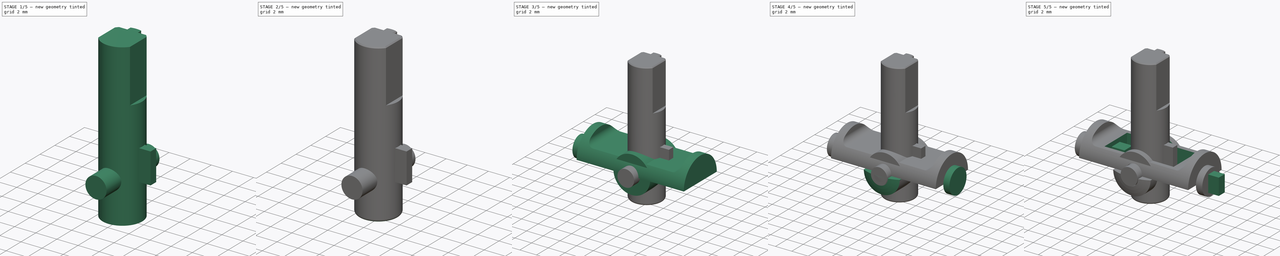
[diagram: build sequence overview — one tinted view per stage of 5, left to right]
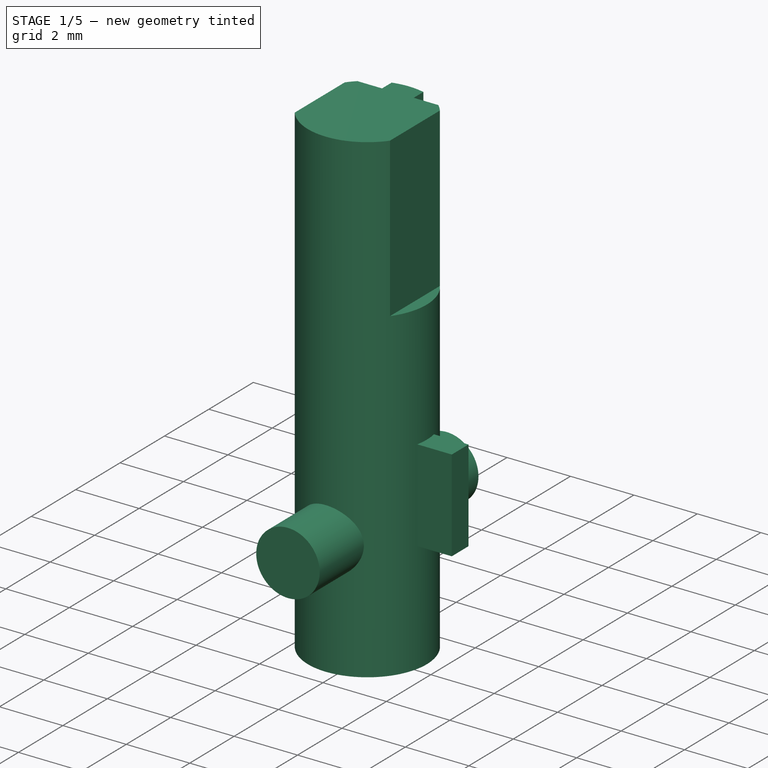
[diagram: stage 1 of 5 — iso view after this stage's code; geometry added in this stage tinted green]
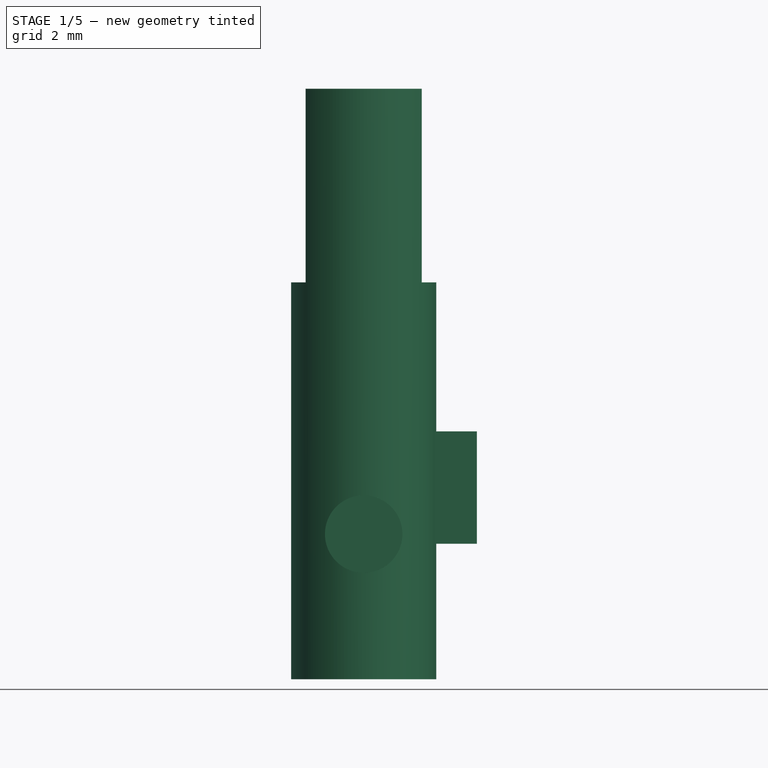
[diagram: stage 1 of 5 — front view after this stage's code; geometry added in this stage tinted green]
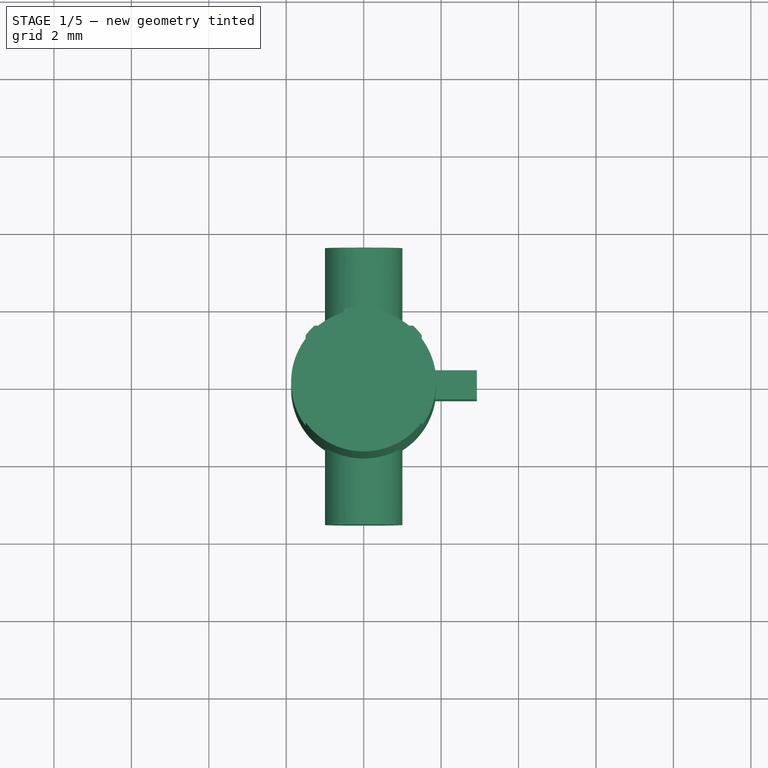
[diagram: stage 1 of 5 — top view after this stage's code; geometry added in this stage tinted green]
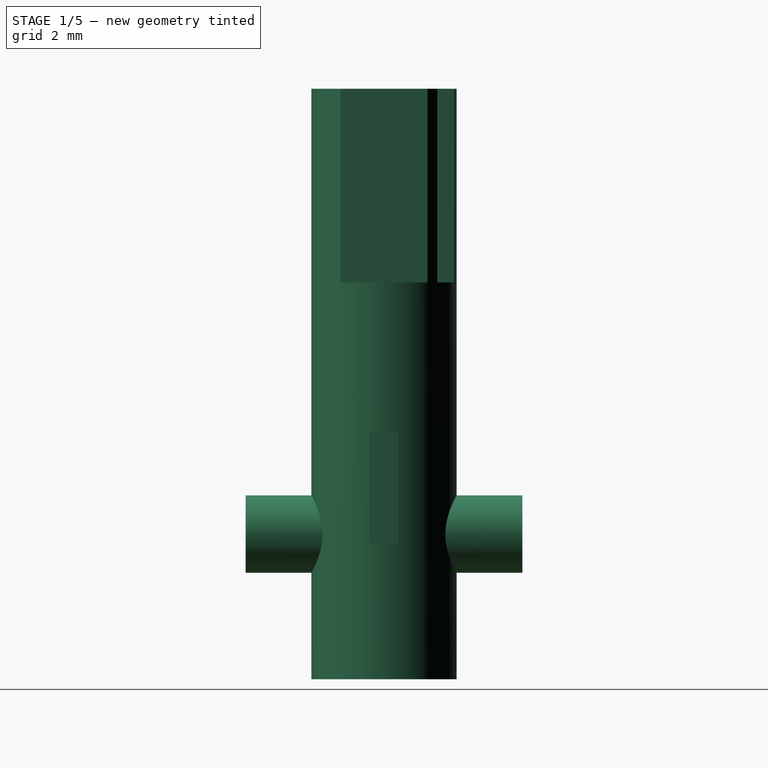
[diagram: stage 1 of 5 — right view after this stage's code; geometry added in this stage tinted green]
FCSTD DOCUMENT  (FreeCAD 1.0R39109 (Git))
Label: NGCC_PARTS_T2
License: All rights reserved
LicenseURL: https://en.wikipedia.org/wiki/All_rights_reserved
objects: Sketcher::SketchObject×16, PartDesign::Pad×9, PartDesign::Pocket×4, PartDesign::Body×2, PartDesign::Revolution×1, PartDesign::Mirrored×1, PartDesign::Groove×1, PartDesign::Fillet×1, PartDesign::Chamfer×1
note: 87 computed .brp shape members not serialized (recipe doc carries the construction recipe); baked Part::Feature solids carry a one-line shape summary decoded from their .brp

FEATURE [Sketcher::SketchObject] Sketch002
  ArcFitTolerance = 1e-06
  AttachmentOffset = pos=(0,0,-6.425) rot=(0,0,1;0rad)
  AttachmentSupport = -> [YZ_Plane]
  FullyConstrained = true
  MakeInternals = false
  MapMode = 5
  Placement = pos=(-6.425,0,0) rot=(0.57735,0.57735,0.57735;2.0944rad)
  expr: .AttachmentOffset.Base.z = -<<Pad>>.Length / 2
  sketch-geometry (1):
    g0: Circle CenterX=0 CenterY=0 CenterZ=0 NormalX=0 NormalY=0 NormalZ=1 AngleXU=0 Radius=1.25
  constraints (2):
    c: Coincident(g0,g-1)
    c: Diameter(g0) = 2.5
FEATURE [Sketcher::SketchObject] Sketch003
  ArcFitTolerance = 1e-06
  AttachmentOffset = pos=(0,0,6.425) rot=(0,0,1;0rad)
  AttachmentSupport = -> [YZ_Plane]
  FullyConstrained = true
  MakeInternals = false
  MapMode = 5
  Placement = pos=(6.425,0,0) rot=(0.57735,0.57735,0.57735;2.0944rad)
  expr: .AttachmentOffset.Base.z = <<Pad>>.Length / 2
  sketch-geometry (1):
    g0: Circle CenterX=0 CenterY=0 CenterZ=0 NormalX=0 NormalY=0 NormalZ=1 AngleXU=0 Radius=1.5
  constraints (2):
    c: Coincident(g0,g-1)
    c: Diameter(g0) = 3
FEATURE [Sketcher::SketchObject] Sketch004
  ArcFitTolerance = 1e-06
  AttachmentOffset = pos=(0,0,7.175) rot=(0,0,1;0rad)
  AttachmentSupport = -> [YZ_Plane]
  FullyConstrained = true
  MakeInternals = false
  MapMode = 5
  Placement = pos=(7.175,0,0) rot=(0.57735,0.57735,0.57735;2.0944rad)
  expr: .AttachmentOffset.Base.z = <<Pad>>.Length / 2 + <<Pad002>>.Length
  expr: Constraints[10] = .Constraints.LL / 2
  expr: Constraints[11] = .Constraints.HH / 2
  sketch-geometry (4):
    g0: LineSegment StartX=-0.5 StartY=0.975 StartZ=0 EndX=-0.5 EndY=-0.975 EndZ=0
    g1: LineSegment StartX=-0.5 StartY=-0.975 StartZ=0 EndX=0.5 EndY=-0.975 EndZ=0
    g2: LineSegment StartX=0.5 StartY=-0.975 StartZ=0 EndX=0.5 EndY=0.975 EndZ=0
    g3: LineSegment StartX=0.5 StartY=0.975 StartZ=0 EndX=-0.5 EndY=0.975 EndZ=0
  constraints (12):
    c: Coincident(g0,g1)
    c: Coincident(g1,g2)
    c: Coincident(g2,g3)
    c: Coincident(g3,g0)
    c: Vertical(g0)
    c: Vertical(g2)
    c: Horizontal(g1)
    c: Horizontal(g3)
    c: Distance(g3,g3) = 1  'LL'
    c: DistanceY(g0,g0) = 1.95  'HH'
    c: DistanceX(g0,g-1) = 0.5
    c: DistanceY(g-1,g0) = 0.975
FEATURE [Sketcher::SketchObject] Sketch005
  ArcFitTolerance = 1e-06
  AttachmentSupport = -> [XY_Plane]
  FullyConstrained = true
  MakeInternals = false
  MapMode = 5
  expr: Constraints[10] = .Constraints.LL / 2
  expr: Constraints[11] = .Constraints.HH / 2
  sketch-geometry (8):
    g0: LineSegment StartX=-4.075 StartY=1.9 StartZ=0 EndX=-4.075 EndY=0.675 EndZ=0
    g1: LineSegment StartX=-4.075 StartY=-1.9 StartZ=0 EndX=4.075 EndY=-1.9 EndZ=0
    g2: LineSegment StartX=4.075 StartY=-1.9 StartZ=0 EndX=4.075 EndY=1.9 EndZ=0
    g3: LineSegment StartX=4.075 StartY=1.9 StartZ=0 EndX=-4.075 EndY=1.9 EndZ=0
    g4: LineSegment StartX=-4.075 StartY=0.675 StartZ=0 EndX=-2.575 EndY=0.675 EndZ=0
    g5: LineSegment StartX=-2.575 StartY=0.675 StartZ=0 EndX=-2.575 EndY=-0.675 EndZ=0
    g6: LineSegment StartX=-2.575 StartY=-0.675 StartZ=0 EndX=-4.075 EndY=-0.675 EndZ=0
    g7: LineSegment StartX=-4.075 StartY=-0.675 StartZ=0 EndX=-4.075 EndY=-1.9 EndZ=0
  constraints (25):
    c: Coincident(g7,g1)
    c: Coincident(g1,g2)
    c: Coincident(g2,g3)
    c: Coincident(g3,g0)
    c: Vertical(g0)
    c: Vertical(g2)
    c: Horizontal(g1)
    c: Horizontal(g3)
    c: DistanceX(g3,g3) = 8.15  'LL'
    c: DistanceY(g7,g0) = 3.8  'HH'
    c: DistanceX(g0,g-1) = 4.075
    c: DistanceY(g-1,g0) = 1.9
    c: Horizontal(g4)
    c: Coincident(g5,g4)
    c: Vertical(g5)
    c: Coincident(g6,g5)
    c: PointOnObject(g6,g7)
    c: Horizontal(g6)
    c: Coincident(g0,g4)
    c: PointOnObject(g7,g6)
    c: DistanceX(g4,g4) = 1.5
    c: Vertical(g7)
    c: Vertical(g6,g0)
    c: DistanceY(g5,g5) = 1.35
    c: Equal(g7,g0)
FEATURE [Sketcher::SketchObject] Sketch006
  ArcFitTolerance = 1e-06
  AttachmentSupport = -> [YZ_Plane]
  FullyConstrained = true
  MakeInternals = false
  MapMode = 5
  Placement = pos=(0,0,0) rot=(0.57735,0.57735,0.57735;2.0944rad)
  expr: Constraints[9] = .Constraints.LL / 2
  sketch-geometry (4):
    g0: LineSegment StartX=-1.5 StartY=3 StartZ=0 EndX=-1.5 EndY=1 EndZ=0
    g1: LineSegment StartX=-1.5 StartY=1 StartZ=0 EndX=1.5 EndY=1 EndZ=0
    g2: LineSegment StartX=1.5 StartY=1 StartZ=0 EndX=1.5 EndY=3 EndZ=0
    g3: LineSegment StartX=1.5 StartY=3 StartZ=0 EndX=-1.5 EndY=3 EndZ=0
  constraints (12):
    c: Coincident(g0,g1)
    c: Coincident(g1,g2)
    c: Coincident(g2,g3)
    c: Coincident(g3,g0)
    c: Vertical(g0)
    c: Vertical(g2)
    c: Horizontal(g1)
    c: Horizontal(g3)
    c: DistanceX(g3,g3) = 3  'LL'
    c: DistanceX(g0,g-1) = 1.5
    c: DistanceY(g0,g0) = 2
    c: DistanceY(g-1,g0) = 1
FEATURE [Sketcher::SketchObject] Sketch008
  ArcFitTolerance = 1e-06
  AttachmentOffset = pos=(0,0,6.5) rot=(0,0,1;0rad)
  AttachmentSupport = -> [XY_Plane002]
  FullyConstrained = true
  MakeInternals = false
  MapMode = 5
  Placement = pos=(0,0,6.5) rot=(0,0,1;0rad)
  sketch-geometry (1):
    g0: Circle CenterX=0 CenterY=0 CenterZ=0 NormalX=0 NormalY=0 NormalZ=1 AngleXU=0 Radius=1.875
  constraints (2):
    c: Coincident(g0,g-1)
    c: Diameter(g0) = 3.75
FEATURE [PartDesign::Pad] Pad004  label="Stem1"
  Direction = (0,0,1)
  Length = 10.25
  Length2 = 10
  Profile = -> Sketch008
  ReferenceAxis = -> Sketch008 [N_Axis]
  Refine = true
  Reversed = true
  Suppressed = false
  Type = 0
  expr: Length = 15.25 - 5
FEATURE [Sketcher::SketchObject] Sketch010
  ArcFitTolerance = 1e-06
  AttachmentOffset = pos=(0,0,6.5) rot=(0,0,1;0rad)
  AttachmentSupport = -> [XY_Plane002]
  FullyConstrained = true
  MakeInternals = false
  MapMode = 5
  Placement = pos=(0,0,6.5) rot=(0,0,1;0rad)
  sketch-geometry (10):
    g0: ArcOfCircle CenterX=0 CenterY=0 CenterZ=0 NormalX=0 NormalY=0 NormalZ=1 AngleXU=0 Radius=1.875 StartAngle=0.643501 EndAngle=0.823212
    g1: LineSegment StartX=-1.5 StartY=1.125 StartZ=0 EndX=-1.5 EndY=-1.125 EndZ=0
    g2: LineSegment StartX=1.5 StartY=1.125 StartZ=0 EndX=1.5 EndY=-1.125 EndZ=0
    g3: LineSegment StartX=-1.27475 StartY=1.375 StartZ=0 EndX=-0.5 EndY=1.375 EndZ=0
    g4: LineSegment StartX=-0.5 StartY=1.8071 StartZ=0 EndX=-0.5 EndY=1.375 EndZ=0
    g5: ArcOfCircle CenterX=0 CenterY=0 CenterZ=0 NormalX=0 NormalY=0 NormalZ=1 AngleXU=0 Radius=1.875 StartAngle=3.78509 EndAngle=5.63968
    g6: ArcOfCircle CenterX=0 CenterY=0 CenterZ=0 NormalX=0 NormalY=0 NormalZ=1 AngleXU=0 Radius=1.875 StartAngle=2.31838 EndAngle=2.49809
    g7: LineSegment StartX=0.5 StartY=1.8071 StartZ=0 EndX=0.5 EndY=1.375 EndZ=0
    g8: ArcOfCircle CenterX=0 CenterY=0 CenterZ=0 NormalX=0 NormalY=0 NormalZ=1 AngleXU=0 Radius=1.875 StartAngle=1.30086 EndAngle=1.84073
    g9: LineSegment StartX=0.5 StartY=1.375 StartZ=0 EndX=1.27475 EndY=1.375 EndZ=0
  constraints (30):
    c: Coincident(g0,g-1)
    c: Diameter(g0) = 3.75
    c: Vertical(g1)
    c: Vertical(g2)
    c: DistanceX(g-1,g2) = 1.5
    c: Horizontal(g3)
    c: Vertical(g4)
    c: DistanceX(g4,g-1) = 0.5
    c: Coincident(g5,g2)
    c: Coincident(g0,g2)
    c: Equal(g0,g5)
    c: Coincident(g0,g5)
    c: Coincident(g1,g5)
    c: Coincident(g1,g6)
    c: DistanceX(g6,g-1) = 1.5
    c: Equal(g0,g6)
    c: Coincident(g0,g6)
    c: Vertical(g7)
    c: DistanceX(g-1,g7) = 0.5
    c: Equal(g0,g8)
    c: Coincident(g0,g8)
    c: Coincident(g9,g0)
    c: Coincident(g4,g3)
    c: Coincident(g3,g6)
    c: DistanceY(g-1,g3) = 1.375
    c: Horizontal(g3,g7)
    c: Horizontal(g9)
    c: Coincident(g7,g9)
    c: Coincident(g7,g8)
    c: Coincident(g4,g8)
FEATURE [PartDesign::Pad] Pad006  label="Stem2"
  BaseFeature = -> Pad004
  Direction = (0,0,1)
  Length = 5
  Length2 = 10
  Profile = -> Sketch010
  ReferenceAxis = -> Sketch010 [N_Axis]
  Refine = true
  Suppressed = false
  Type = 0
FEATURE [PartDesign::Body] Body  label="GUIDE_X"
  AllowCompound = false
  Group = -> [Sketch,Pad,Sketch001,Pocket,Pad008,Sketch002,Pad001,Sketch003,Sketch013,Revolution001,Mirrored,Pad002,Sketch004,Pad003,Sketch005,Pocket001,Sketch006,Pocket002,Sketch012,Sketch014,Pocket003]
  Origin = -> Origin
  Tip = -> Pocket003
FEATURE [Sketcher::SketchObject] Sketch015
  ArcFitTolerance = 1e-06
  AttachmentSupport = -> [YZ_Plane002]
  FullyConstrained = true
  MakeInternals = false
  MapMode = 5
  Placement = pos=(0,0,0) rot=(0.57735,0.57735,0.57735;2.0944rad)
  expr: Constraints[10] = .Constraints.LL / 2
  sketch-geometry (5):
    g0: LineSegment StartX=-0.375 StartY=2.65 StartZ=0 EndX=-0.375 EndY=-0.25 EndZ=0
    g1: LineSegment StartX=-0.375 StartY=-0.25 StartZ=0 EndX=0.375 EndY=-0.25 EndZ=0
    g2: LineSegment StartX=0.375 StartY=-0.25 StartZ=0 EndX=0.375 EndY=2.65 EndZ=0
    g3: LineSegment StartX=0.375 StartY=2.65 StartZ=0 EndX=-0.375 EndY=2.65 EndZ=0
    g4: LineSegment [constr] StartX=0 StartY=0 StartZ=0 EndX=0 EndY=11.5 EndZ=0
  constraints (15):
    c: Coincident(g0,g1)
    c: Coincident(g1,g2)
    c: Coincident(g2,g3)
    c: Coincident(g3,g0)
    c: Vertical(g0)
    c: Vertical(g2)
    c: Horizontal(g1)
    c: Horizontal(g3)
    c: DistanceY(g0,g0) = 2.9  'HH'
    c: DistanceX(g3,g3) = 0.75  'LL'
    c: DistanceX(g0,g-1) = 0.375
    c: Vertical(g4)
    c: DistanceY(g4,g4) = 11.5
    c: Coincident(g-1,g4)
    c: DistanceY(g0,g4) = 11.75
FEATURE [Sketcher::SketchObject] Sketch016
  ArcFitTolerance = 1e-06
  AttachmentSupport = -> [XZ_Plane002]
  FullyConstrained = true
  MakeInternals = false
  MapMode = 5
  Placement = pos=(0,0,0) rot=(1,0,0;1.5708rad)
  expr: .Constraints.LL = 3.75 / 2
  sketch-geometry (3):
    g0: LineSegment StartX=-1.875 StartY=-3.4 StartZ=0 EndX=-1.875 EndY=-3.75 EndZ=0
    g1: LineSegment StartX=-1.875 StartY=-3.75 StartZ=0 EndX=-2.2e-15 EndY=-3.75 EndZ=0
    g2: ArcOfCircle CenterX=-0.0368587 CenterY=1.24986 CenterZ=0 NormalX=0 NormalY=0 NormalZ=1 AngleXU=0 Radius=5 StartAngle=4.33593 EndAngle=4.71976
  constraints (10):
    c: Vertical(g0)
    c: Coincident(g1,g0)
    c: Horizontal(g1)
    c: Coincident(g2,g1)
    c: Coincident(g2,g0)
    c: DistanceY(g0,g0) = 0.35
    c: DistanceX(g1,g1) = 1.875  'LL'
    c: Radius(g2) = 5
    c: Vertical(g-1,g1)
    c: DistanceY(g0,g-1) = 3.75
FEATURE [Sketcher::SketchObject] Sketch017  label="Ref"
  ArcFitTolerance = 1e-06
  AttachmentSupport = -> [XZ_Plane002]
  FullyConstrained = false
  MakeInternals = false
  MapMode = 5
  Placement = pos=(0,0,0) rot=(1,0,0;1.5708rad)
  sketch-geometry (6):
    g0: LineSegment StartX=2.75739 StartY=-5.5 StartZ=0 EndX=5.73733 EndY=-5.5 EndZ=0
    g1: LineSegment StartX=13.5006 StartY=1.25 StartZ=0 EndX=-13.9716 EndY=1.25 EndZ=0
    g2: LineSegment StartX=-6.30912 StartY=-6.25 StartZ=0 EndX=6.15947 EndY=-6.25 EndZ=0
    g3: LineSegment StartX=8.4034 StartY=-1.25 StartZ=0 EndX=-9.9256 EndY=-1.25 EndZ=0
    g4: LineSegment StartX=-2.25091 StartY=-5.075 StartZ=0 EndX=-7.99017 EndY=-5.075 EndZ=0
    g5: LineSegment StartX=6.5839 StartY=11.45 StartZ=0 EndX=-7.9181 EndY=11.45 EndZ=0
  constraints (13):
    c: Horizontal(g0)
    c: Horizontal(g1)
    c: DistanceY(g-1,g1) = 1.25
    c: Distance(g1,g0) = 6.75
    c: Horizontal(g2)
    c: Horizontal(g3)
    c: Distance(g2,g0) = 0.75
    c: DistanceY(g3,g-1) = 1.25
    c: Horizontal(g4)
    c: DistanceY(g4,g3) = 3.825
    c: DistanceY(g2,g4) = 1.175
    c: Horizontal(g5)
    c: DistanceY(g2,g5) = 17.7
FEATURE [PartDesign::Pad] Pad007  label="Y_STEM"
  BaseFeature = -> Pad006
  Direction = (0,-1,2e-16)
  Length = 7.15
  Length2 = 10
  Midplane = true
  Profile = -> Sketch011
  ReferenceAxis = -> Sketch011 [N_Axis]
  Refine = true
  Suppressed = false
  Type = 0
FEATURE [PartDesign::Pad] Pad009
  BaseFeature = -> Pad007
  Direction = (1,0,0)
  Length = 2.925
  Length2 = 10
  Profile = -> Sketch015
  ReferenceAxis = -> Sketch015 [N_Axis]
  Refine = true
  Suppressed = false
  Type = 0
  expr: Length = 4.6 - 3.35 / 2
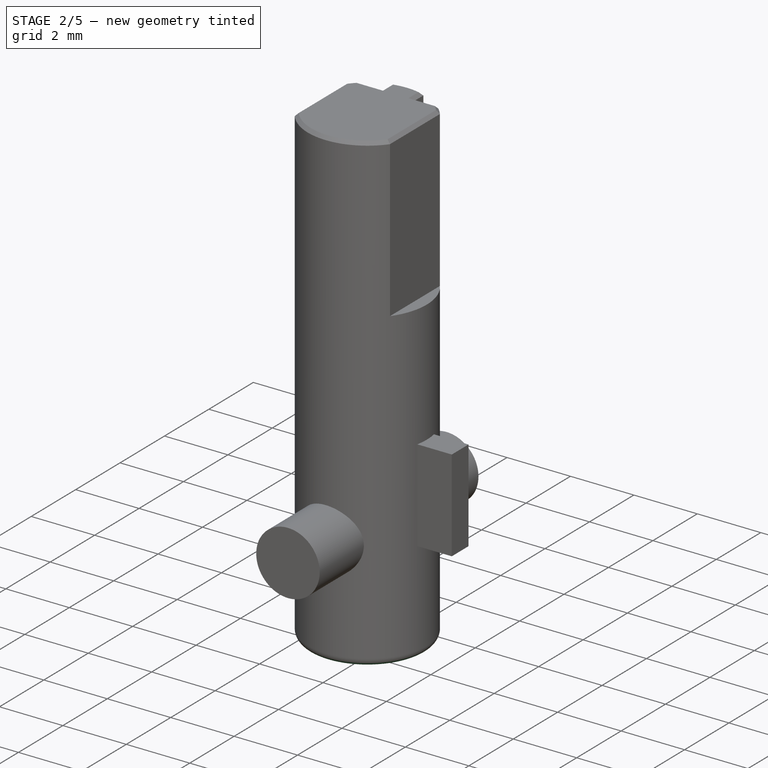
[diagram: stage 2 of 5 — iso view after this stage's code; geometry added in this stage tinted green]
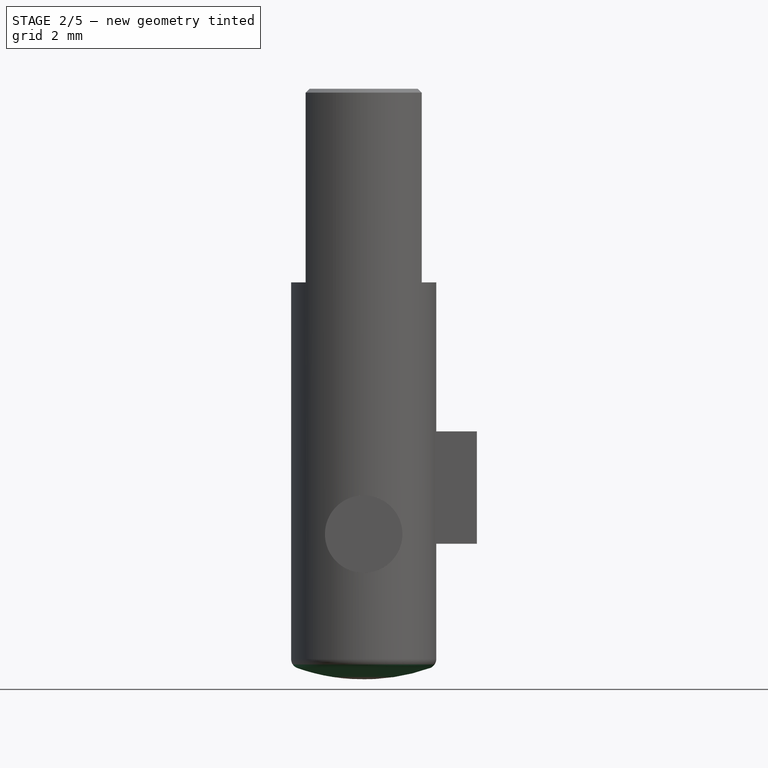
[diagram: stage 2 of 5 — front view after this stage's code; geometry added in this stage tinted green]
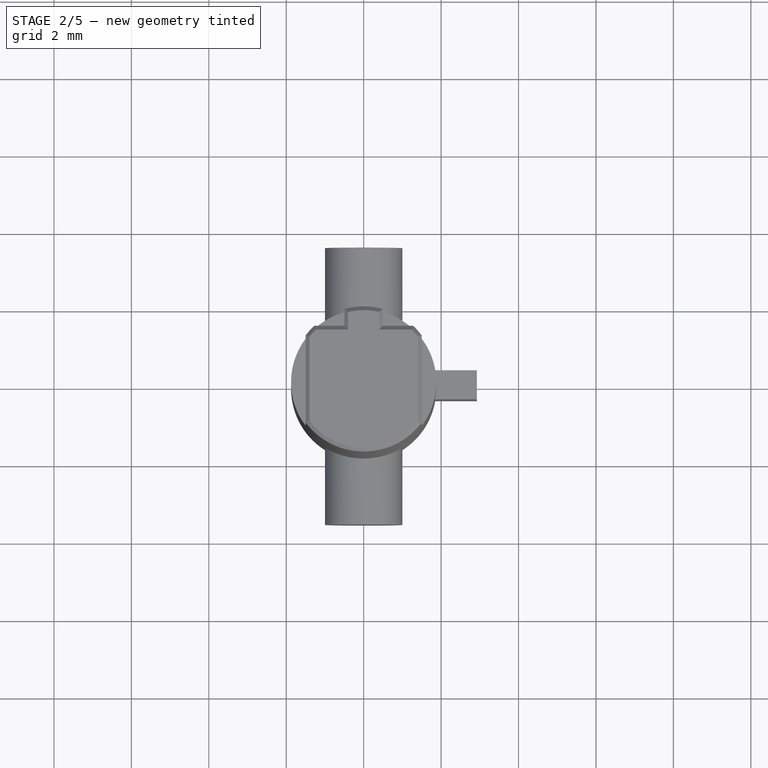
[diagram: stage 2 of 5 — top view after this stage's code; geometry added in this stage tinted green]
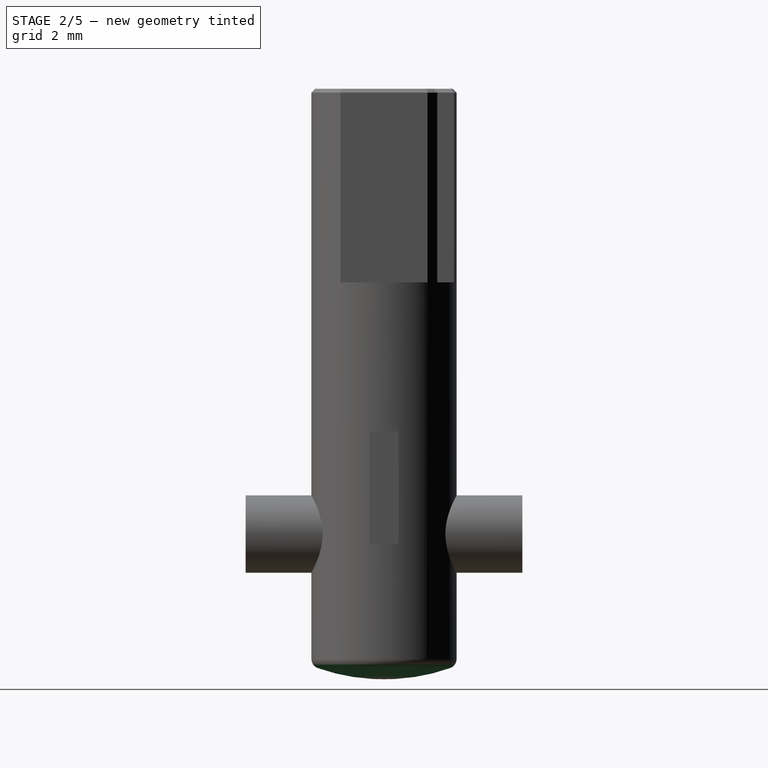
[diagram: stage 2 of 5 — right view after this stage's code; geometry added in this stage tinted green]
FEATURE [PartDesign::Groove] Groove
  Angle = 360
  Angle2 = 60
  Axis = (0,2e-16,1)
  Base = (0,0,0)
  BaseFeature = -> Pad009
  Profile = -> Sketch016
  ReferenceAxis = -> Sketch016 [V_Axis]
  Refine = true
  Reversed = true
  Suppressed = false
  Type = 0
FEATURE [PartDesign::Fillet] Fillet
  Base = -> Groove [Edge11]
  BaseFeature = -> Groove
  Radius = 0.25
  Refine = true
  SupportTransform = false
  Suppressed = false
  UseAllEdges = false
FEATURE [PartDesign::Chamfer] Chamfer
  Angle = 45
  Base = -> Fillet [Face10]
  BaseFeature = -> Fillet
  ChamferType = 0
  FlipDirection = false
  Refine = true
  Size = 0.1
  Size2 = 1
  SupportTransform = false
  Suppressed = false
  UseAllEdges = false
FEATURE [PartDesign::Body] Body002  label="STEM"
  AllowCompound = false
  Group = -> [Sketch008,Pad004,Sketch010,Pad006,Sketch011,Pad007,Sketch015,Pad009,Sketch016,Groove,Fillet,Chamfer]
  Origin = -> Origin002
  Tip = -> Chamfer
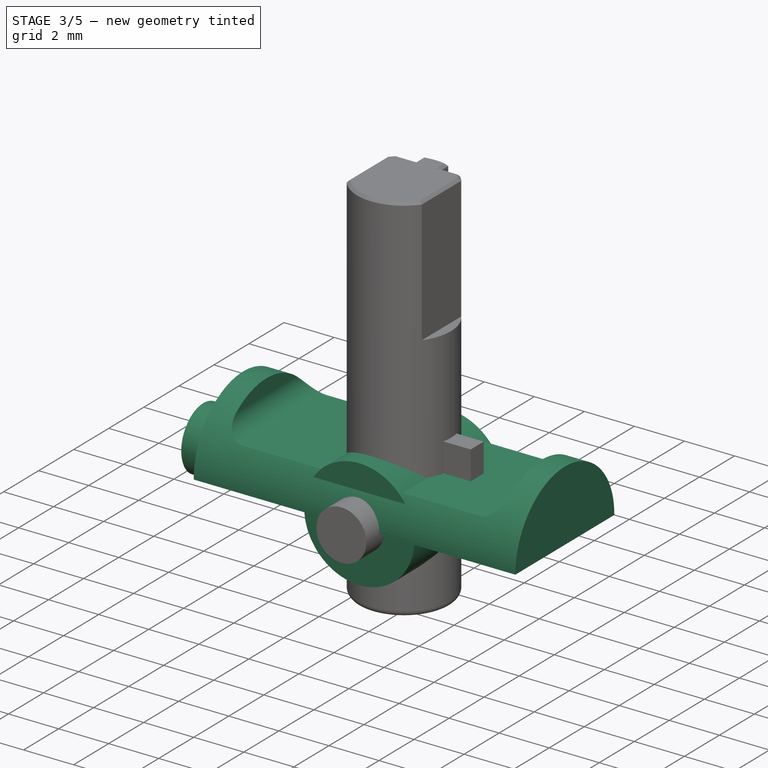
[diagram: stage 3 of 5 — iso view after this stage's code; geometry added in this stage tinted green]
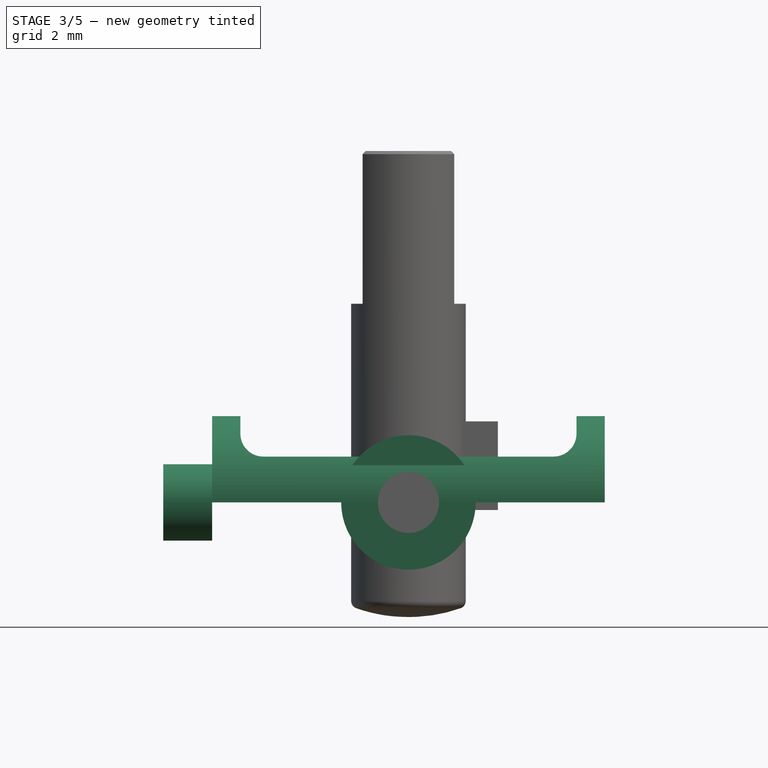
[diagram: stage 3 of 5 — front view after this stage's code; geometry added in this stage tinted green]
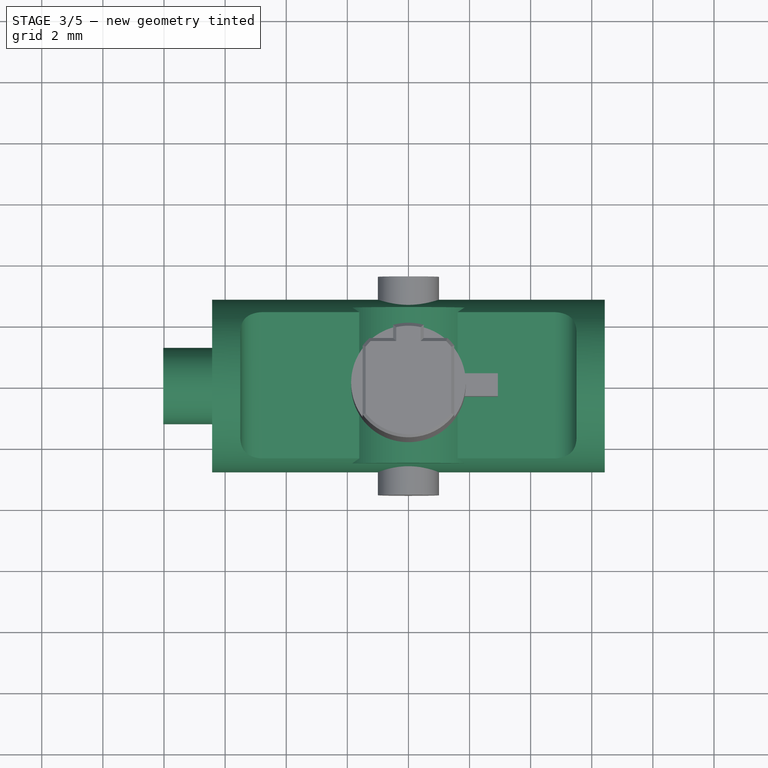
[diagram: stage 3 of 5 — top view after this stage's code; geometry added in this stage tinted green]
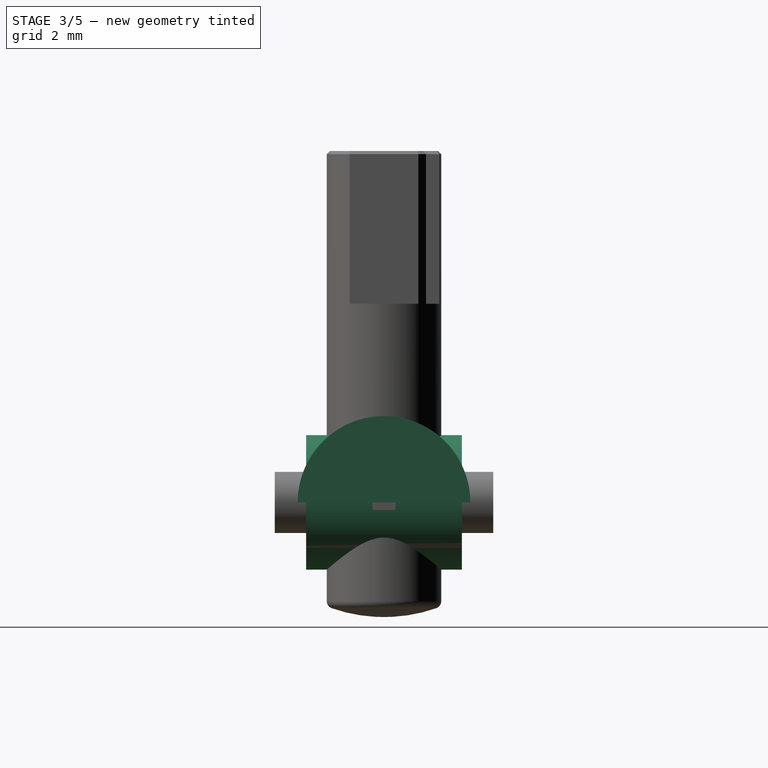
[diagram: stage 3 of 5 — right view after this stage's code; geometry added in this stage tinted green]
FEATURE [Sketcher::SketchObject] Sketch
  ArcFitTolerance = 1e-06
  AttachmentSupport = -> [YZ_Plane]
  FullyConstrained = true
  MakeInternals = false
  MapMode = 5
  Placement = pos=(0,0,0) rot=(0.57735,0.57735,0.57735;2.0944rad)
  sketch-geometry (2):
    g0: ArcOfCircle CenterX=0 CenterY=0 CenterZ=0 NormalX=0 NormalY=0 NormalZ=1 AngleXU=0 Radius=2.825 StartAngle=0 EndAngle=3.14159
    g1: LineSegment StartX=-2.825 StartY=0 StartZ=0 EndX=2.825 EndY=0 EndZ=0
  constraints (6):
    c: Coincident(g0,g-1)
    c: Diameter(g0) = 5.65
    c: Horizontal(g1)
    c: Coincident(g0,g1)
    c: Coincident(g0,g1)
    c: Horizontal(g0,g0)
FEATURE [PartDesign::Pad] Pad
  Direction = (1,0,0)
  Length = 12.85
  Length2 = 10
  Midplane = true
  Placement = pos=(0,0,0) rot=(1,1,1;2.0944rad)
  Profile = -> Sketch
  ReferenceAxis = -> Sketch [N_Axis]
  Refine = true
  Suppressed = false
  Type = 0
FEATURE [Sketcher::SketchObject] Sketch001
  ArcFitTolerance = 1e-06
  AttachmentSupport = -> [XZ_Plane]
  FullyConstrained = true
  MakeInternals = false
  MapMode = 5
  Placement = pos=(0,0,0) rot=(1,0,0;1.5708rad)
  expr: Constraints[16] = .Constraints.LL / 2
  sketch-geometry (8):
    g0: LineSegment StartX=-5.5 StartY=4.25 StartZ=0 EndX=-5.5 EndY=2.25 EndZ=0
    g1: LineSegment StartX=-4.75 StartY=1.5 StartZ=0 EndX=4.75 EndY=1.5 EndZ=0
    g2: LineSegment StartX=5.5 StartY=2.25 StartZ=0 EndX=5.5 EndY=4.25 EndZ=0
    g3: LineSegment StartX=5.5 StartY=4.25 StartZ=0 EndX=-5.5 EndY=4.25 EndZ=0
    g4: ArcOfCircle CenterX=-4.75 CenterY=2.25 CenterZ=0 NormalX=0 NormalY=0 NormalZ=1 AngleXU=0 Radius=0.75 StartAngle=3.14159 EndAngle=4.71239
    g5: GeomPoint [constr] X=-5.5 Y=1.5 Z=0
    g6: ArcOfCircle CenterX=4.75 CenterY=2.25 CenterZ=0 NormalX=0 NormalY=0 NormalZ=1 AngleXU=0 Radius=0.75 StartAngle=4.71239 EndAngle=6.28319
    g7: GeomPoint [constr] X=5.5 Y=1.5 Z=0
  constraints (20):
    c: Coincident(g2,g3)
    c: Coincident(g3,g0)
    c: Vertical(g0)
    c: Vertical(g2)
    c: Horizontal(g1)
    c: Horizontal(g3)
    c: PointOnObject(g5,g0)
    c: PointOnObject(g5,g1)
    c: Tangent(g0,g4) = -1.5708
    c: Tangent(g1,g4) = -1.5708
    c: PointOnObject(g7,g1)
    c: PointOnObject(g7,g2)
    c: Tangent(g1,g6) = -1.5708
    c: Tangent(g2,g6) = -1.5708
    c: DistanceY(g-1,g5) = 1.5
    c: DistanceX(g3,g3) = 11  'LL'
    c: DistanceX(g0,g-1) = 5.5
    c: Equal(g4,g6)
    c: Radius(g4) = 0.75
    c: DistanceY(g0,g0) = 2
FEATURE [PartDesign::Pocket] Pocket
  BaseFeature = -> Pad
  Direction = (0,1,-2e-16)
  Length = 5
  Length2 = 5
  Midplane = true
  Placement = pos=(0,0,0) rot=(1,1,1;2.0944rad)
  Profile = -> Sketch001
  ReferenceAxis = -> Sketch001 [N_Axis]
  Refine = true
  Suppressed = false
  Type = 1
FEATURE [Sketcher::SketchObject] Sketch011
  ArcFitTolerance = 1e-06
  AttachmentSupport = -> [XZ_Plane002]
  FullyConstrained = true
  MakeInternals = false
  MapMode = 5
  Placement = pos=(0,0,0) rot=(1,0,0;1.5708rad)
  sketch-geometry (1):
    g0: Circle CenterX=0 CenterY=0 CenterZ=0 NormalX=0 NormalY=0 NormalZ=1 AngleXU=0 Radius=1
  constraints (2):
    c: Coincident(g0,g-1)
    c: Diameter(g0) = 2
FEATURE [Sketcher::SketchObject] Sketch012
  ArcFitTolerance = 1e-06
  AttachmentSupport = -> [XZ_Plane]
  FullyConstrained = true
  MakeInternals = false
  MapMode = 5
  Placement = pos=(0,0,0) rot=(1,0,0;1.5708rad)
  sketch-geometry (1):
    g0: Circle CenterX=0 CenterY=0 CenterZ=0 NormalX=0 NormalY=0 NormalZ=1 AngleXU=0 Radius=2.2
  constraints (2):
    c: Diameter(g0) = 4.4
    c: Coincident(g0,g-1)
FEATURE [PartDesign::Pad] Pad008
  BaseFeature = -> Pocket
  Direction = (0,-1,2e-16)
  Length = 5.1
  Length2 = 10
  Midplane = true
  Placement = pos=(0,0,0) rot=(1,1,1;2.0944rad)
  Profile = -> Sketch012
  ReferenceAxis = -> Sketch012 [N_Axis]
  Refine = true
  Suppressed = false
  Type = 0
FEATURE [PartDesign::Pad] Pad001
  BaseFeature = -> Pad008
  Direction = (1,0,0)
  Length = 1.6
  Length2 = 10
  Placement = pos=(0,0,0) rot=(1,1,1;2.0944rad)
  Profile = -> Sketch002
  ReferenceAxis = -> Sketch002 [N_Axis]
  Refine = true
  Reversed = true
  Suppressed = false
  Type = 0
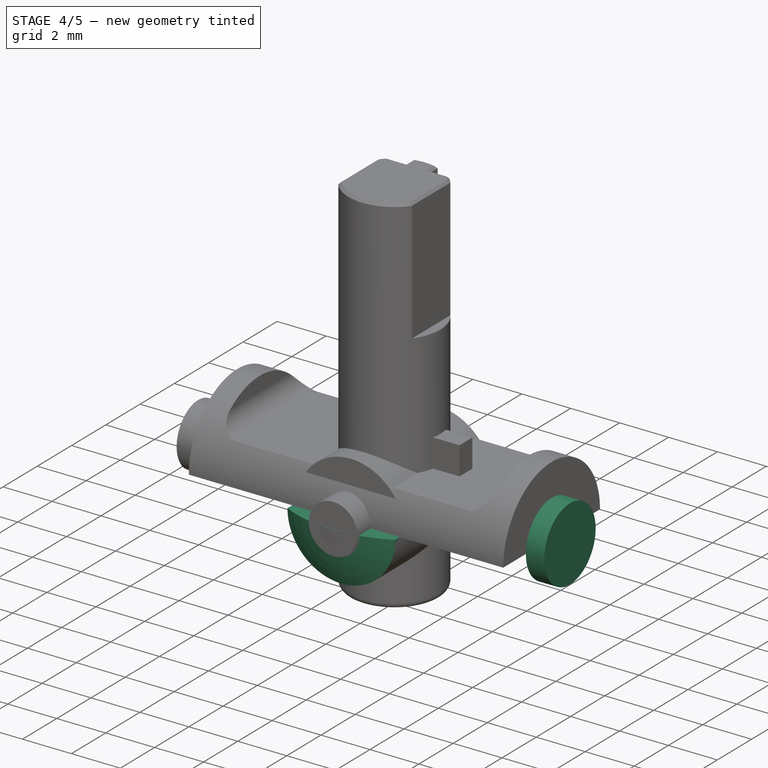
[diagram: stage 4 of 5 — iso view after this stage's code; geometry added in this stage tinted green]
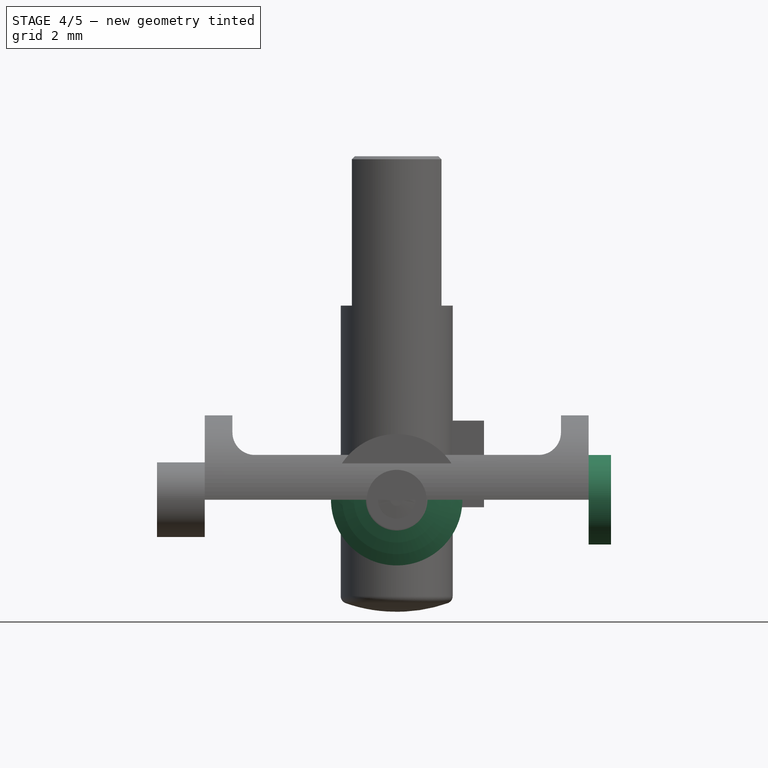
[diagram: stage 4 of 5 — front view after this stage's code; geometry added in this stage tinted green]
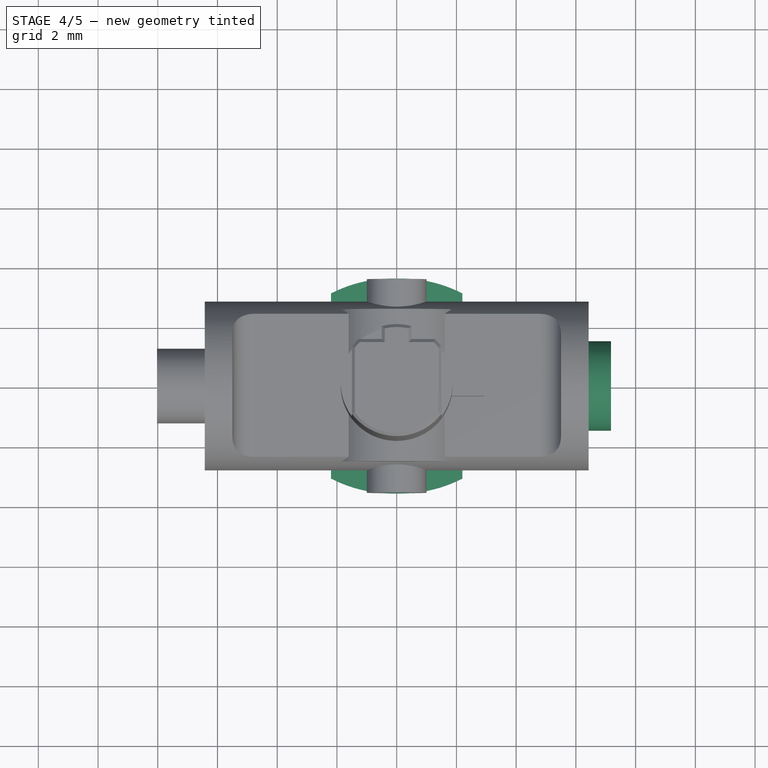
[diagram: stage 4 of 5 — top view after this stage's code; geometry added in this stage tinted green]
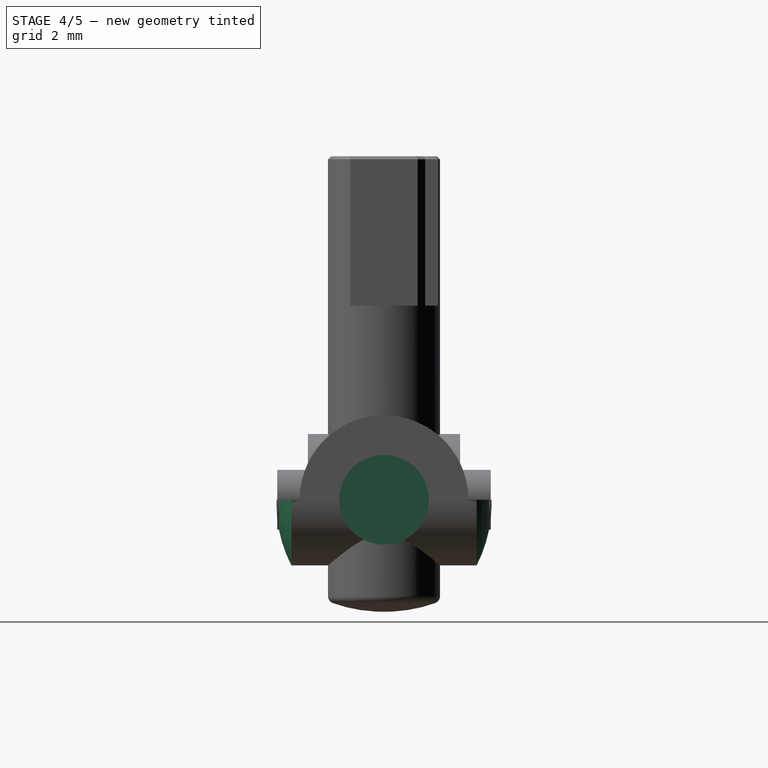
[diagram: stage 4 of 5 — right view after this stage's code; geometry added in this stage tinted green]
FEATURE [Sketcher::SketchObject] Sketch013
  ArcFitTolerance = 1e-06
  AttachmentSupport = -> [XY_Plane]
  FullyConstrained = true
  MakeInternals = false
  MapMode = 5
  sketch-geometry (4):
    g0: LineSegment StartX=-2.2 StartY=-2.5 StartZ=0 EndX=-2.2 EndY=-3.1 EndZ=0
    g1: LineSegment StartX=-2.2 StartY=-2.5 StartZ=0 EndX=-2.35e-14 EndY=-2.5 EndZ=0
    g2: LineSegment StartX=-2.35e-14 StartY=-2.5 StartZ=0 EndX=-2.35e-14 EndY=-3.6 EndZ=0
    g3: ArcOfCircle CenterX=-0.134548 CenterY=0.897988 CenterZ=0 NormalX=0 NormalY=0 NormalZ=1 AngleXU=0 Radius=4.5 StartAngle=4.23553 EndAngle=4.74229
  constraints (13):
    c: Coincident(g1,g0)
    c: Horizontal(g1)
    c: Coincident(g2,g1)
    c: Vertical(g2)
    c: Vertical(g0)
    c: Coincident(g3,g0)
    c: Coincident(g3,g2)
    c: DistanceY(g0,g-1) = 2.5
    c: Vertical(g1,g-1)
    c: DistanceX(g1,g1) = 2.2
    c: DistanceY(g0,g0) = 0.6
    c: DistanceY(g2,g2) = 1.1
    c: Radius(g3) = 4.5
FEATURE [PartDesign::Revolution] Revolution001
  Angle = 180
  Angle2 = 60
  Axis = (0,1,0)
  Base = (0,0,0)
  BaseFeature = -> Pad001
  Placement = pos=(0,0,0) rot=(1,1,1;2.0944rad)
  Profile = -> Sketch013
  ReferenceAxis = -> Sketch013 [V_Axis]
  Refine = true
  Reversed = true
  Suppressed = false
  Type = 0
FEATURE [PartDesign::Mirrored] Mirrored
  BaseFeature = -> Revolution001
  MirrorPlane = -> XZ_Plane
  Originals = -> [Revolution001]
  Placement = pos=(0,0,0) rot=(1,1,1;2.0944rad)
  Refine = true
  Suppressed = false
  TransformMode = 0
FEATURE [PartDesign::Pad] Pad002
  BaseFeature = -> Mirrored
  Direction = (1,0,0)
  Length = 0.75
  Length2 = 10
  Placement = pos=(0,0,0) rot=(1,1,1;2.0944rad)
  Profile = -> Sketch003
  ReferenceAxis = -> Sketch003 [N_Axis]
  Refine = true
  Suppressed = false
  Type = 0
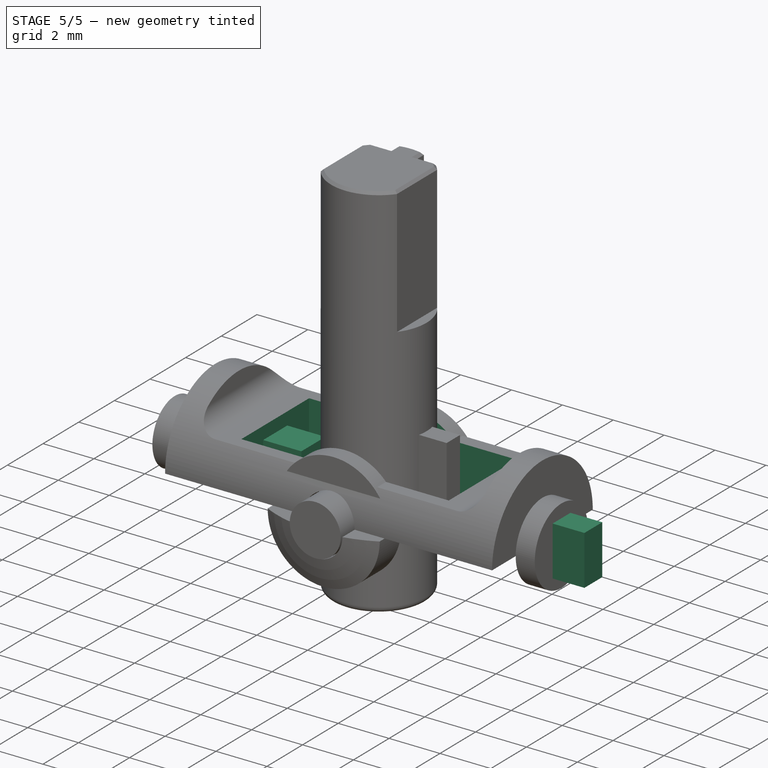
[diagram: stage 5 of 5 — iso view after this stage's code; geometry added in this stage tinted green]
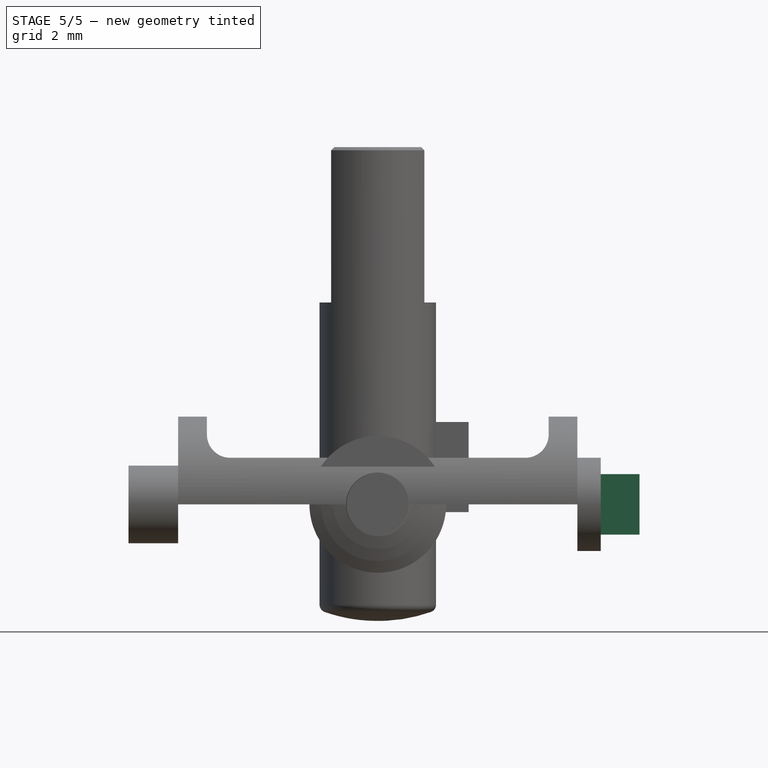
[diagram: stage 5 of 5 — front view after this stage's code; geometry added in this stage tinted green]
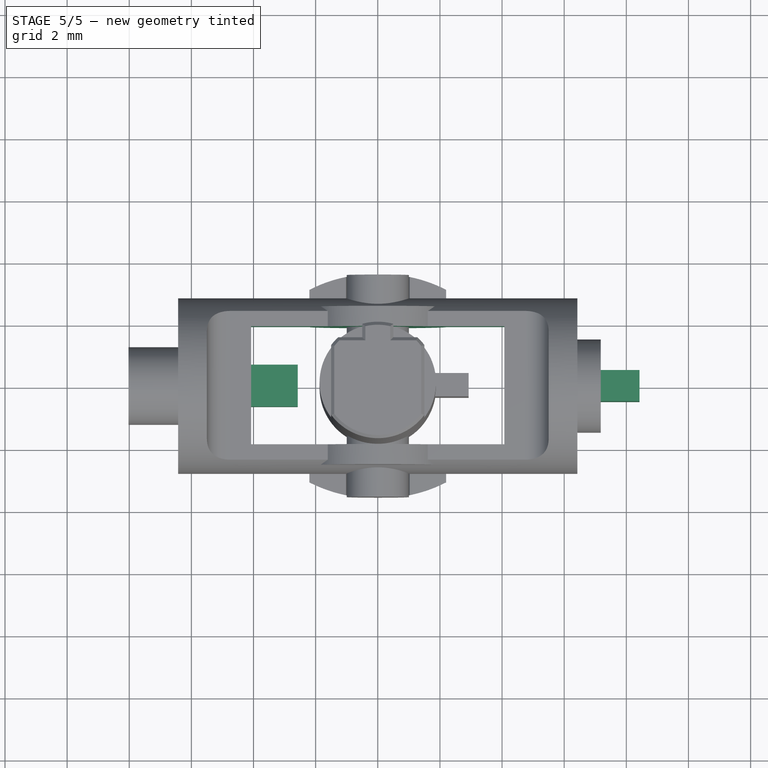
[diagram: stage 5 of 5 — top view after this stage's code; geometry added in this stage tinted green]
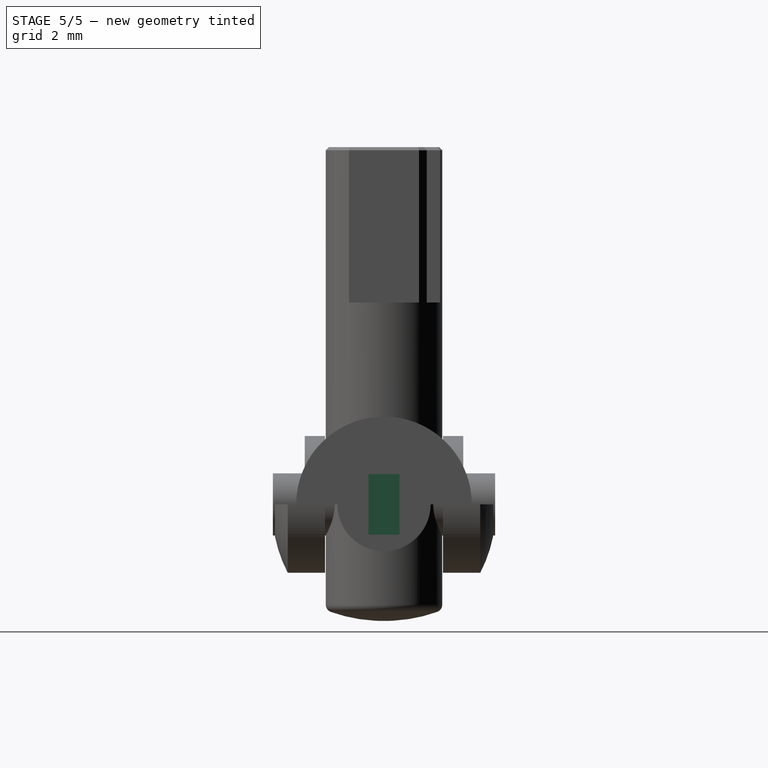
[diagram: stage 5 of 5 — right view after this stage's code; geometry added in this stage tinted green]
FEATURE [PartDesign::Pad] Pad003
  BaseFeature = -> Pad002
  Direction = (1,0,0)
  Length = 1.25
  Length2 = 10
  Placement = pos=(0,0,0) rot=(1,1,1;2.0944rad)
  Profile = -> Sketch004
  ReferenceAxis = -> Sketch004 [N_Axis]
  Refine = true
  Suppressed = false
  Type = 0
FEATURE [PartDesign::Pocket] Pocket001
  BaseFeature = -> Pad003
  Direction = (0,0,-1)
  Length = 5
  Length2 = 5
  Midplane = true
  Placement = pos=(0,0,0) rot=(1,1,1;2.0944rad)
  Profile = -> Sketch005
  ReferenceAxis = -> Sketch005 [N_Axis]
  Refine = true
  Suppressed = false
  Type = 1
FEATURE [PartDesign::Pocket] Pocket002
  BaseFeature = -> Pocket001
  Direction = (-1,0,0)
  Length = 4.075
  Length2 = 5
  Placement = pos=(0,0,0) rot=(1,1,1;2.0944rad)
  Profile = -> Sketch006
  ReferenceAxis = -> Sketch006 [N_Axis]
  Refine = true
  Suppressed = false
  Type = 0
FEATURE [Sketcher::SketchObject] Sketch014
  ArcFitTolerance = 1e-06
  AttachmentSupport = -> [XZ_Plane]
  FullyConstrained = true
  MakeInternals = false
  MapMode = 5
  Placement = pos=(0,0,0) rot=(1,0,0;1.5708rad)
  sketch-geometry (1):
    g0: Circle CenterX=0 CenterY=0 CenterZ=0 NormalX=0 NormalY=0 NormalZ=1 AngleXU=0 Radius=1.025
  constraints (2):
    c: Coincident(g0,g-1)
    c: Diameter(g0) = 2.05
FEATURE [PartDesign::Pocket] Pocket003
  BaseFeature = -> Pocket002
  Direction = (0,1,-2e-16)
  Length = 5
  Length2 = 5
  Midplane = true
  Placement = pos=(0,0,0) rot=(1,1,1;2.0944rad)
  Profile = -> Sketch014
  ReferenceAxis = -> Sketch014 [N_Axis]
  Refine = true
  Suppressed = false
  Type = 1
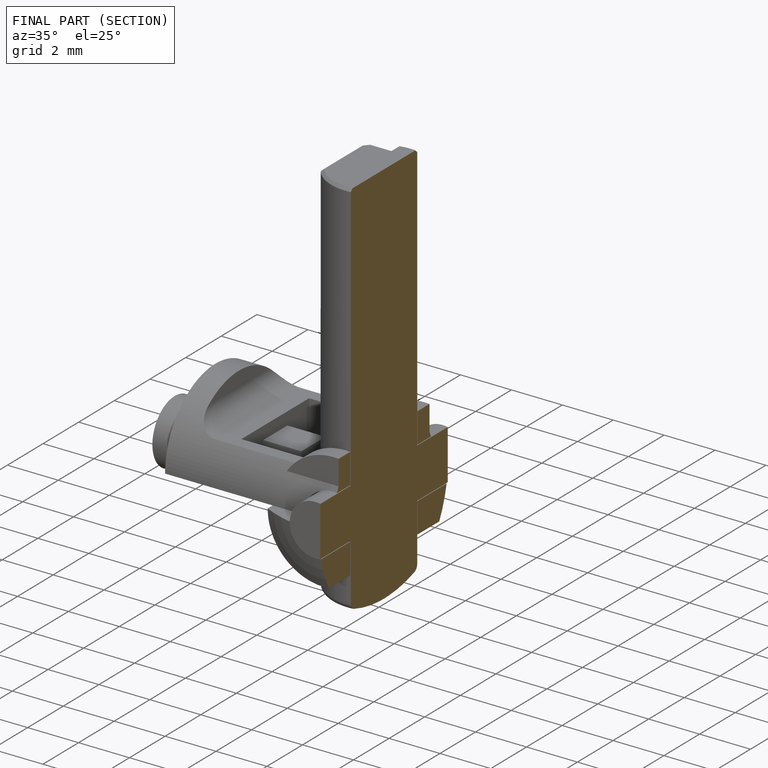
[diagram: finished part — half-section view (interior)]
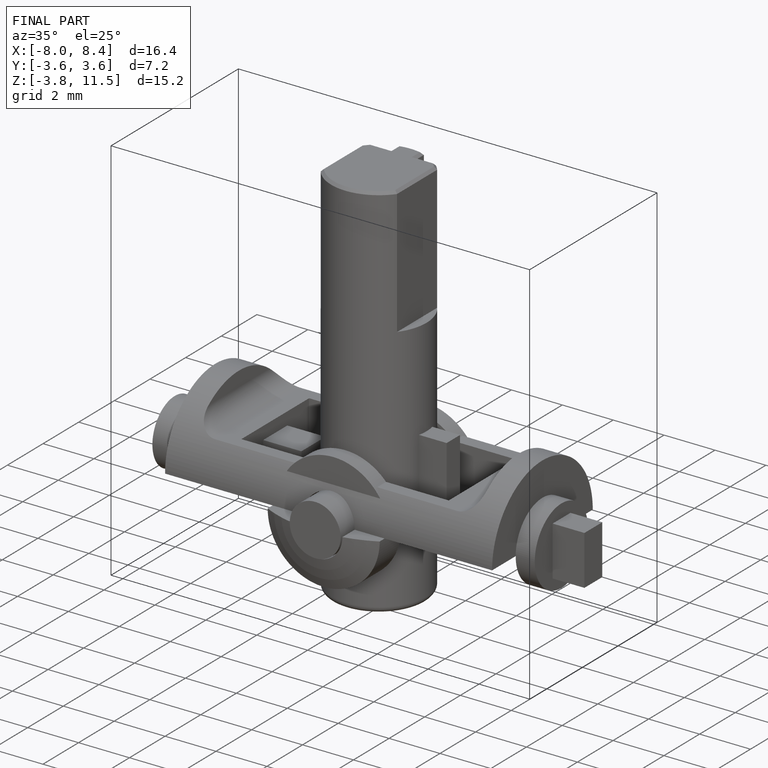
[diagram: finished part — iso view with bounding-box wireframe]
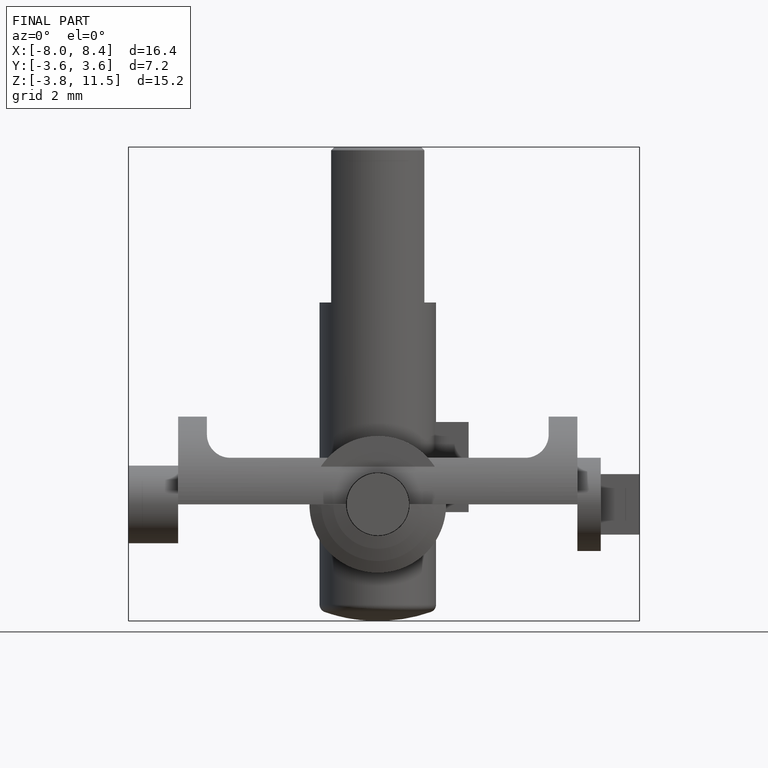
[diagram: finished part — front view with bounding-box wireframe]
